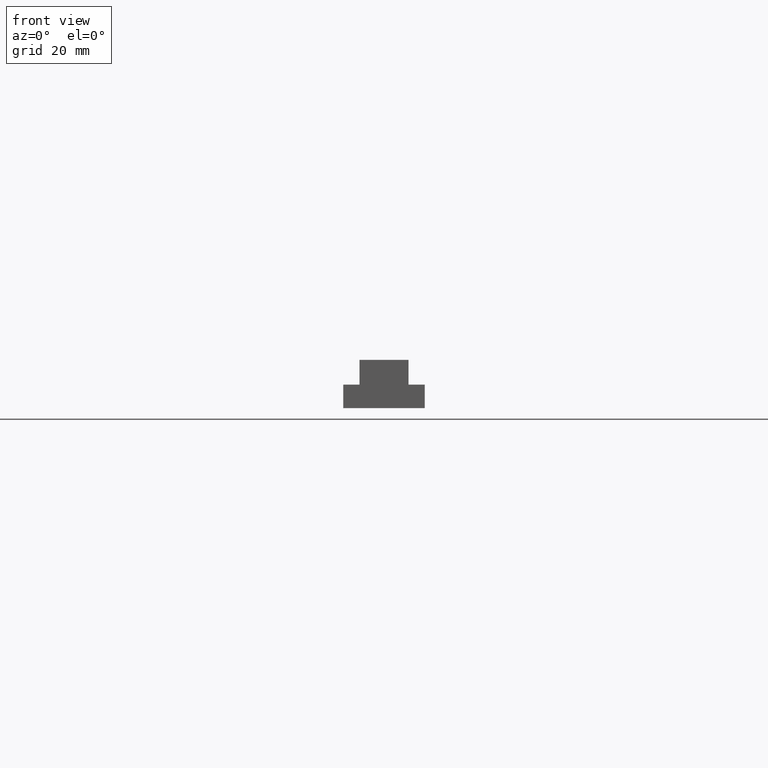
[diagram: clean part render]
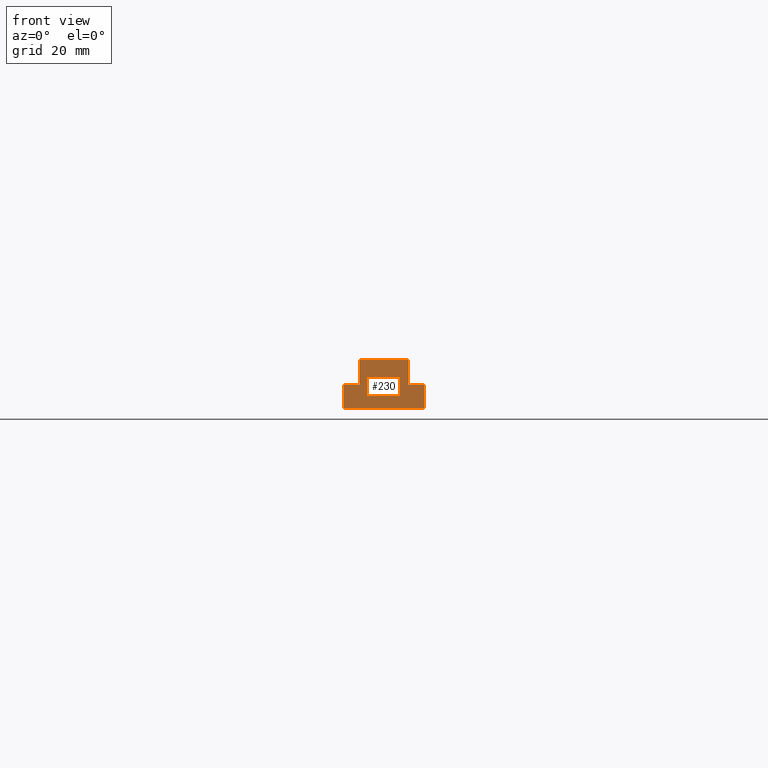
[diagram: same view with one face highlighted and labeled with its STEP entity id]
A machine part, front view. The second image highlights one B-rep face of the part: STEP entity #230.
In plain terms, the highlighted planar face has unit normal (0, -1, 0).
Its self-contained STEP definition (entity closure, byte-faithful):
#17=LINE('',#325,#41);
#21=LINE('',#332,#45);
#24=LINE('',#338,#48);
#27=LINE('',#344,#51);
#30=LINE('',#350,#54);
#33=LINE('',#356,#57);
#35=LINE('',#361,#59);
#37=LINE('',#364,#61);
#41=VECTOR('',#267,2.6999999999889);
#45=VECTOR('',#273,3.89999999998463);
#48=VECTOR('',#278,13.4999999999459);
#51=VECTOR('',#283,3.89999999998463);
#54=VECTOR('',#288,2.69999999998936);
#57=VECTOR('',#293,4.09999999998354);
#59=VECTOR('',#297,8.09999999996762);
#61=VECTOR('',#301,4.09999999998354);
#72=PLANE('',#248);
#90=FACE_OUTER_BOUND('',#108,.T.);
#108=EDGE_LOOP('',(#209,#210,#211,#212,#213,#214,#215,#216));
#119=VERTEX_POINT('',#322);
#120=VERTEX_POINT('',#324);
#122=VERTEX_POINT('',#330);
#124=VERTEX_POINT('',#336);
#126=VERTEX_POINT('',#342);
#128=VERTEX_POINT('',#348);
#130=VERTEX_POINT('',#354);
#132=VERTEX_POINT('',#359);
#139=EDGE_CURVE('',#120,#119,#17,.T.);
#143=EDGE_CURVE('',#119,#122,#21,.T.);
#146=EDGE_CURVE('',#122,#124,#24,.T.);
#149=EDGE_CURVE('',#124,#126,#27,.T.);
#152=EDGE_CURVE('',#126,#128,#30,.T.);
#155=EDGE_CURVE('',#128,#130,#33,.T.);
#157=EDGE_CURVE('',#130,#132,#35,.T.);
#159=EDGE_CURVE('',#132,#120,#37,.T.);
#209=ORIENTED_EDGE('',*,*,#139,.T.);
#210=ORIENTED_EDGE('',*,*,#143,.T.);
#211=ORIENTED_EDGE('',*,*,#146,.T.);
#212=ORIENTED_EDGE('',*,*,#149,.T.);
#213=ORIENTED_EDGE('',*,*,#152,.T.);
#214=ORIENTED_EDGE('',*,*,#155,.T.);
#215=ORIENTED_EDGE('',*,*,#157,.T.);
#216=ORIENTED_EDGE('',*,*,#159,.T.);
#230=ADVANCED_FACE('',(#90),#72,.T.);
#248=AXIS2_PLACEMENT_3D('',#367,#305,#306);
#267=DIRECTION('',(-1.,0.,0.));
#273=DIRECTION('',(0.,0.,-1.));
#278=DIRECTION('',(1.,0.,0.));
#283=DIRECTION('',(0.,0.,1.));
#288=DIRECTION('',(-1.,0.,0.));
#293=DIRECTION('',(0.,0.,1.));
#297=DIRECTION('',(-1.,0.,0.));
#301=DIRECTION('',(0.,0.,-1.));
#305=DIRECTION('center_axis',(0.,-1.,0.));
#306=DIRECTION('ref_axis',(0.,0.,-1.));
#322=CARTESIAN_POINT('',(-6.74999999997272,-104.99999999958,3.89999999998463));
#324=CARTESIAN_POINT('',(-4.04999999998381,-104.99999999958,3.89999999998463));
#325=CARTESIAN_POINT('',(-4.04999999998381,-104.99999999958,3.89999999998463));
#330=CARTESIAN_POINT('',(-6.74999999997272,-104.99999999958,-8.881784E-16));
#332=CARTESIAN_POINT('',(-6.74999999997272,-104.99999999958,3.89999999998463));
#336=CARTESIAN_POINT('',(6.74999999997317,-104.99999999958,-8.881784E-16));
#338=CARTESIAN_POINT('',(-6.74999999997272,-104.99999999958,-8.881784E-16));
#342=CARTESIAN_POINT('',(6.74999999997317,-104.99999999958,3.89999999998463));
#344=CARTESIAN_POINT('',(6.74999999997317,-104.99999999958,-8.881784E-16));
#348=CARTESIAN_POINT('',(4.04999999998381,-104.99999999958,3.89999999998463));
#350=CARTESIAN_POINT('',(6.74999999997317,-104.99999999958,3.89999999998463));
#354=CARTESIAN_POINT('',(4.04999999998381,-104.99999999958,7.99999999996817));
#356=CARTESIAN_POINT('',(4.04999999998381,-104.99999999958,3.89999999998463));
#359=CARTESIAN_POINT('',(-4.04999999998381,-104.99999999958,7.99999999996817));
#361=CARTESIAN_POINT('',(4.04999999998381,-104.99999999958,7.99999999996817));
#364=CARTESIAN_POINT('',(-4.04999999998381,-104.99999999958,7.99999999996817));
#367=CARTESIAN_POINT('Origin',(-8.10000473353739,-104.99999999958,-0.800004733558127));